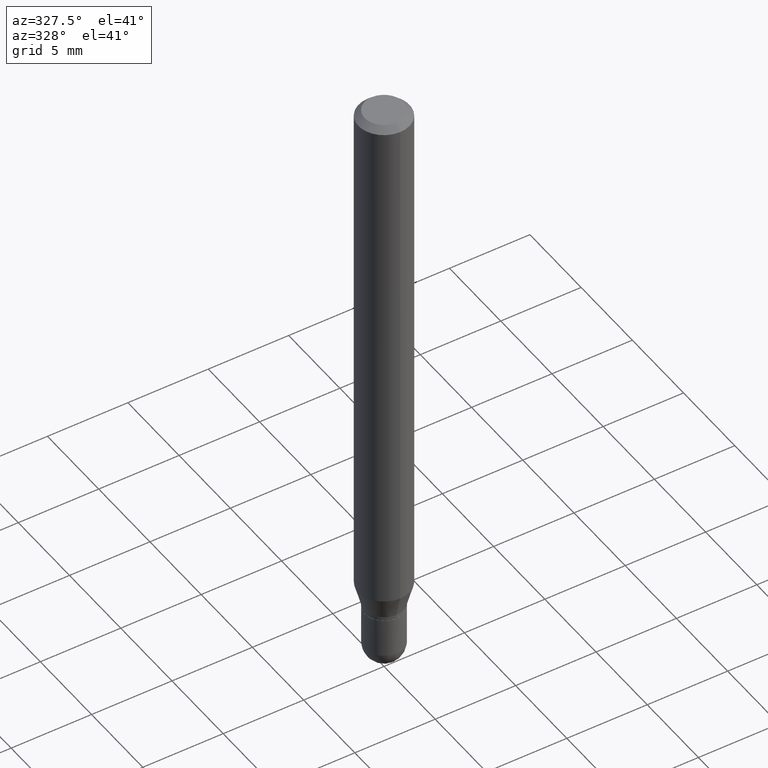
[diagram: clean part render]
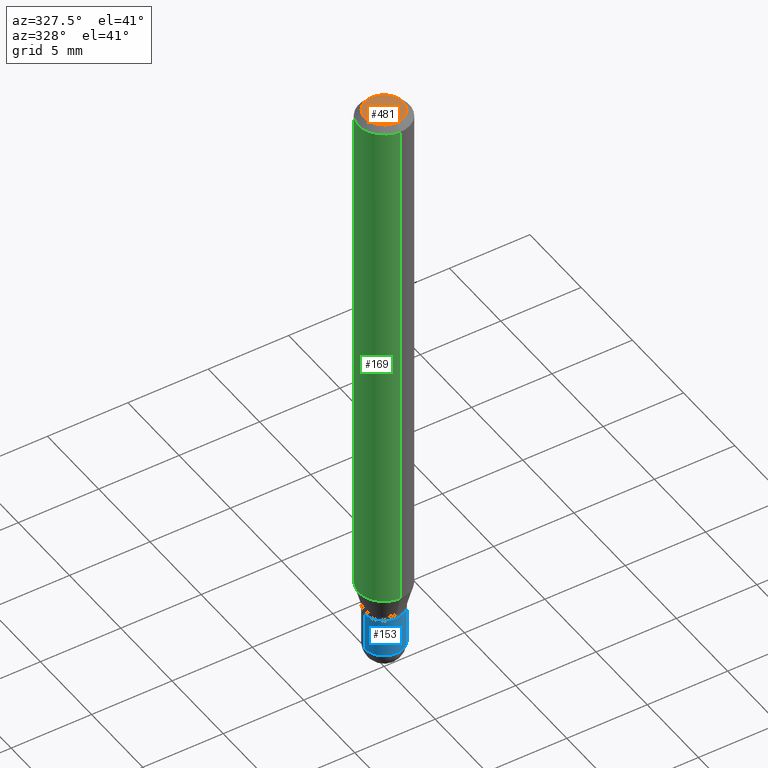
[diagram: same view with three faces highlighted in distinct colors, each labeled with its STEP entity id]
A machine part, auxiliary view with three faces highlighted in distinct colors.
Their STEP definitions:

[orange] entity #481 — the highlighted planar face has unit normal (0, -0, -1).
#18 = FACE_OUTER_BOUND ( 'NONE', #433, .T. ) ;
#34 = AXIS2_PLACEMENT_3D ( 'NONE', #389, #427, #212 ) ;
#68 = DIRECTION ( 'NONE',  ( -6.982962677686266711E-15, -1.000000000000000000, 3.491467954031727953E-15 ) ) ;
#103 = DIRECTION ( 'NONE',  ( 2.445478152748994135E-29, -3.491467954031727558E-15, -1.000000000000000000 ) ) ;
#134 = CARTESIAN_POINT ( 'NONE',  ( 3.316907271900976096E-16, 0.04749999999999999362, -1.702752055016937715E-16 ) ) ;
#147 = ORIENTED_EDGE ( 'NONE', *, *, #292, .T. ) ;
#168 = PLANE ( 'NONE',  #332 ) ;
#185 = CIRCLE ( 'NONE', #34, 0.04749999999999999362 ) ;
#212 = DIRECTION ( 'NONE',  ( -6.982962677686266711E-15, -1.000000000000000000, 3.491467954031727953E-15 ) ) ;
#220 = DIRECTION ( 'NONE',  ( -2.445478152748994695E-29, 3.491467954031727558E-15, 1.000000000000000000 ) ) ;
#249 = CARTESIAN_POINT ( 'NONE',  ( -3.773273898774340269E-16, -0.04749999999999999362, 1.569837724461335946E-16 ) ) ;
#292 = EDGE_CURVE ( 'NONE', #318, #437, #185, .T. ) ;
#293 = CARTESIAN_POINT ( 'NONE',  ( 2.166927277073218112E-46, -3.093774171776428259E-32, -8.860955370373462621E-18 ) ) ;
#318 = VERTEX_POINT ( 'NONE', #249 ) ;
#326 = DIRECTION ( 'NONE',  ( 6.982962677686265922E-15, 1.000000000000000000, -3.491467954031727558E-15 ) ) ;
#332 = AXIS2_PLACEMENT_3D ( 'NONE', #134, #103, #326 ) ;
#346 = EDGE_CURVE ( 'NONE', #437, #318, #376, .T. ) ;
#349 = CARTESIAN_POINT ( 'NONE',  ( 3.840629472727447874E-16, 0.04749999999999999362, -1.747056831868805136E-16 ) ) ;
#376 = CIRCLE ( 'NONE', #505, 0.04749999999999999362 ) ;
#389 = CARTESIAN_POINT ( 'NONE',  ( 2.166927277073218112E-46, -3.093774171776428259E-32, -8.860955370373462621E-18 ) ) ;
#427 = DIRECTION ( 'NONE',  ( -2.445478152748994695E-29, 3.491467954031727558E-15, 1.000000000000000000 ) ) ;
#433 = EDGE_LOOP ( 'NONE', ( #506, #147 ) ) ;
#437 = VERTEX_POINT ( 'NONE', #349 ) ;
#481 = ADVANCED_FACE ( 'NONE', ( #18 ), #168, .F. ) ;
#505 = AXIS2_PLACEMENT_3D ( 'NONE', #293, #220, #68 ) ;
#506 = ORIENTED_EDGE ( 'NONE', *, *, #346, .T. ) ;

[blue] entity #153 — the highlighted cylindrical surface (edge-blend (fillet) strip) has radius 1.2065 mm, axis along (-0, 0, 1).
#2 = DIRECTION ( 'NONE',  ( -2.445468806185136877E-29, 3.491481338843145188E-15, 1.000000000000000000 ) ) ;
#6 = AXIS2_PLACEMENT_3D ( 'NONE', #306, #341, #104 ) ;
#45 = CIRCLE ( 'NONE', #291, 0.04749999999999999362 ) ;
#55 = AXIS2_PLACEMENT_3D ( 'NONE', #143, #295, #462 ) ;
#66 = CIRCLE ( 'NONE', #55, 0.04750000000000000749 ) ;
#89 = AXIS2_PLACEMENT_3D ( 'NONE', #106, #465, #428 ) ;
#104 = DIRECTION ( 'NONE',  ( 1.000000000000000000, -6.982962677686260400E-15, 0.000000000000000000 ) ) ;
#106 = CARTESIAN_POINT ( 'NONE',  ( 0.000000000000000000, 0.000000000000000000, 0.000000000000000000 ) ) ;
#113 = VERTEX_POINT ( 'NONE', #154 ) ;
#122 = VECTOR ( 'NONE', #385, 39.37007874015748143 ) ;
#129 = VERTEX_POINT ( 'NONE', #410 ) ;
#131 = ORIENTED_EDGE ( 'NONE', *, *, #379, .F. ) ;
#136 = DIRECTION ( 'NONE',  ( 1.000000000000000000, -6.982962677686261977E-15, 0.000000000000000000 ) ) ;
#140 = CYLINDRICAL_SURFACE ( 'NONE', #89, 0.04750000000000000749 ) ;
#143 = CARTESIAN_POINT ( 'NONE',  ( 3.552043440983912297E-29, -5.071376644669670605E-15, -1.452500000000000346 ) ) ;
#144 = CIRCLE ( 'NONE', #6, 0.04750000000000000749 ) ;
#153 = ADVANCED_FACE ( 'NONE', ( #303 ), #140, .T. ) ;
#154 = CARTESIAN_POINT ( 'NONE',  ( -0.04750000000000000749, -4.567150611253862815E-15, -1.452500000000000346 ) ) ;
#166 = EDGE_LOOP ( 'NONE', ( #400, #273, #237, #351, #131 ) ) ;
#177 = CARTESIAN_POINT ( 'NONE',  ( 0.04750000000000000749, -5.236349137930007031E-15, -1.452500000000000346 ) ) ;
#184 = CARTESIAN_POINT ( 'NONE',  ( -0.04749999999999999362, -4.567150611253862815E-15, -1.356999999999999984 ) ) ;
#232 = EDGE_CURVE ( 'NONE', #281, #129, #366, .T. ) ;
#237 = ORIENTED_EDGE ( 'NONE', *, *, #373, .T. ) ;
#271 = CARTESIAN_POINT ( 'NONE',  ( 0.04750000000000000749, -3.316907271900977082E-16, 2.316183968503069432E-30 ) ) ;
#273 = ORIENTED_EDGE ( 'NONE', *, *, #282, .T. ) ;
#281 = VERTEX_POINT ( 'NONE', #177 ) ;
#282 = EDGE_CURVE ( 'NONE', #113, #364, #144, .T. ) ;
#291 = AXIS2_PLACEMENT_3D ( 'NONE', #469, #496, #136 ) ;
#295 = DIRECTION ( 'NONE',  ( -2.445468806185136597E-29, 3.491481338843145583E-15, 1.000000000000000000 ) ) ;
#302 = LINE ( 'NONE', #498, #122 ) ;
#303 = FACE_OUTER_BOUND ( 'NONE', #166, .T. ) ;
#306 = CARTESIAN_POINT ( 'NONE',  ( 3.552043440983912297E-29, -5.071376644669670605E-15, -1.452500000000000346 ) ) ;
#313 = EDGE_CURVE ( 'NONE', #113, #406, #302, .T. ) ;
#341 = DIRECTION ( 'NONE',  ( -2.445468806185136597E-29, 3.491481338843145583E-15, 1.000000000000000000 ) ) ;
#351 = ORIENTED_EDGE ( 'NONE', *, *, #232, .T. ) ;
#364 = VERTEX_POINT ( 'NONE', #418 ) ;
#366 = LINE ( 'NONE', #271, #368 ) ;
#368 = VECTOR ( 'NONE', #2, 39.37007874015748143 ) ;
#373 = EDGE_CURVE ( 'NONE', #364, #281, #66, .T. ) ;
#379 = EDGE_CURVE ( 'NONE', #406, #129, #45, .T. ) ;
#385 = DIRECTION ( 'NONE',  ( -2.445468806185136877E-29, 3.491481338843145188E-15, 1.000000000000000000 ) ) ;
#400 = ORIENTED_EDGE ( 'NONE', *, *, #313, .F. ) ;
#406 = VERTEX_POINT ( 'NONE', #184 ) ;
#410 = CARTESIAN_POINT ( 'NONE',  ( 0.04749999999999999362, -5.069630904000245946E-15, -1.356999999999999984 ) ) ;
#418 = CARTESIAN_POINT ( 'NONE',  ( -3.375077994860119456E-16, -0.04750000000000507983, -1.452500000000000124 ) ) ;
#428 = DIRECTION ( 'NONE',  ( 1.000000000000000000, -6.982962677686266711E-15, 4.876176775795934672E-29 ) ) ;
#462 = DIRECTION ( 'NONE',  ( 1.000000000000000000, -6.982962677686260400E-15, 0.000000000000000000 ) ) ;
#465 = DIRECTION ( 'NONE',  ( -2.445468806185136597E-29, 3.491481338843145583E-15, 1.000000000000000000 ) ) ;
#469 = CARTESIAN_POINT ( 'NONE',  ( 3.318501169993230375E-29, -4.737940176810148435E-15, -1.356999999999999984 ) ) ;
#496 = DIRECTION ( 'NONE',  ( -2.445468806185136597E-29, 3.491481338843145583E-15, 1.000000000000000000 ) ) ;
#498 = CARTESIAN_POINT ( 'NONE',  ( -0.04750000000000000749, 3.375077994860476415E-16, -2.336494167871080260E-30 ) ) ;

[green] entity #169 — the highlighted cylindrical surface (edge-blend (fillet) strip) has radius 1.5875 mm, axis along (-0, 0, 1).
#16 = AXIS2_PLACEMENT_3D ( 'NONE', #174, #213, #426 ) ;
#17 = ORIENTED_EDGE ( 'NONE', *, *, #337, .T. ) ;
#31 = CARTESIAN_POINT ( 'NONE',  ( -4.364351673553598192E-16, -0.06250000000000446865, -1.291019237886466664 ) ) ;
#43 = DIRECTION ( 'NONE',  ( -6.982962677686265922E-15, -1.000000000000000000, 3.483106191921935554E-15 ) ) ;
#67 = CARTESIAN_POINT ( 'NONE',  ( 4.440892098500625669E-16, 0.06250000000000000000, -2.182167471269829724E-16 ) ) ;
#72 = ORIENTED_EDGE ( 'NONE', *, *, #178, .F. ) ;
#78 = ORIENTED_EDGE ( 'NONE', *, *, #276, .F. ) ;
#94 = ORIENTED_EDGE ( 'NONE', *, *, #356, .T. ) ;
#130 = VERTEX_POINT ( 'NONE', #209 ) ;
#133 = VECTOR ( 'NONE', #182, 39.37007874015748143 ) ;
#138 = DIRECTION ( 'NONE',  ( -2.445478152748994695E-29, 3.491467954031727558E-15, 1.000000000000000000 ) ) ;
#158 = CIRCLE ( 'NONE', #16, 0.06250000000000000000 ) ;
#161 = CARTESIAN_POINT ( 'NONE',  ( -4.364351673553912750E-16, -0.06250000000000005551, -0.01499999999999979128 ) ) ;
#169 = ADVANCED_FACE ( 'NONE', ( #333 ), #288, .T. ) ;
#174 = CARTESIAN_POINT ( 'NONE',  ( 3.157159341030012166E-29, -4.507552297119063437E-15, -1.291019237886467108 ) ) ;
#178 = EDGE_CURVE ( 'NONE', #130, #490, #343, .T. ) ;
#179 = CARTESIAN_POINT ( 'NONE',  ( 0.000000000000000000, 0.000000000000000000, 0.000000000000000000 ) ) ;
#181 = LINE ( 'NONE', #217, #255 ) ;
#182 = DIRECTION ( 'NONE',  ( -2.445478152748994695E-29, 3.491467954031727558E-15, 1.000000000000000000 ) ) ;
#196 = EDGE_LOOP ( 'NONE', ( #72, #94, #17, #78 ) ) ;
#209 = CARTESIAN_POINT ( 'NONE',  ( 4.440892098500942692E-16, 0.06249999999999551747, -1.291019237886467330 ) ) ;
#210 = DIRECTION ( 'NONE',  ( -6.982962677686265922E-15, -1.000000000000000000, 3.491467954031727558E-15 ) ) ;
#213 = DIRECTION ( 'NONE',  ( -2.445478152748994695E-29, 3.491467954031727558E-15, 1.000000000000000000 ) ) ;
#217 = CARTESIAN_POINT ( 'NONE',  ( -4.364351673553916201E-16, -0.06250000000000000000, 2.182167471269829724E-16 ) ) ;
#240 = VERTEX_POINT ( 'NONE', #161 ) ;
#248 = AXIS2_PLACEMENT_3D ( 'NONE', #179, #414, #210 ) ;
#255 = VECTOR ( 'NONE', #138, 39.37007874015748143 ) ;
#274 = CARTESIAN_POINT ( 'NONE',  ( 3.668217229123494478E-31, -5.237201931047594296E-17, -0.01500000000000000812 ) ) ;
#276 = EDGE_CURVE ( 'NONE', #490, #240, #453, .T. ) ;
#288 = CYLINDRICAL_SURFACE ( 'NONE', #248, 0.06250000000000000000 ) ;
#289 = CARTESIAN_POINT ( 'NONE',  ( 4.440892098500943678E-16, 0.06249999999999995837, -0.01500000000000022669 ) ) ;
#333 = FACE_OUTER_BOUND ( 'NONE', #196, .T. ) ;
#337 = EDGE_CURVE ( 'NONE', #429, #240, #181, .T. ) ;
#343 = LINE ( 'NONE', #67, #133 ) ;
#356 = EDGE_CURVE ( 'NONE', #130, #429, #158, .T. ) ;
#369 = AXIS2_PLACEMENT_3D ( 'NONE', #274, #439, #43 ) ;
#414 = DIRECTION ( 'NONE',  ( -2.445478152748994695E-29, 3.491467954031727558E-15, 1.000000000000000000 ) ) ;
#426 = DIRECTION ( 'NONE',  ( -6.982962677686265922E-15, -1.000000000000000000, 4.370956789862821150E-15 ) ) ;
#429 = VERTEX_POINT ( 'NONE', #31 ) ;
#439 = DIRECTION ( 'NONE',  ( -2.445478152748994695E-29, 3.491467954031727558E-15, 1.000000000000000000 ) ) ;
#453 = CIRCLE ( 'NONE', #369, 0.06250000000000000000 ) ;
#490 = VERTEX_POINT ( 'NONE', #289 ) ;